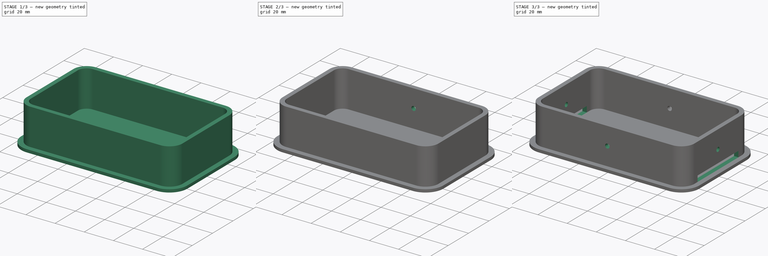
[diagram: build sequence overview — one tinted view per stage of 3, left to right]
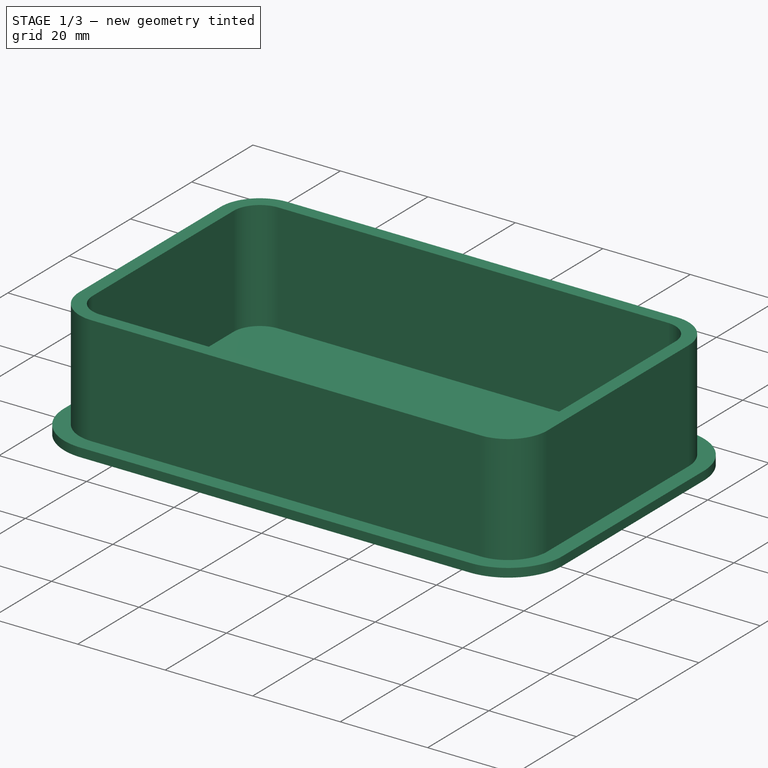
[diagram: stage 1 of 3 — iso view after this stage's code; geometry added in this stage tinted green]
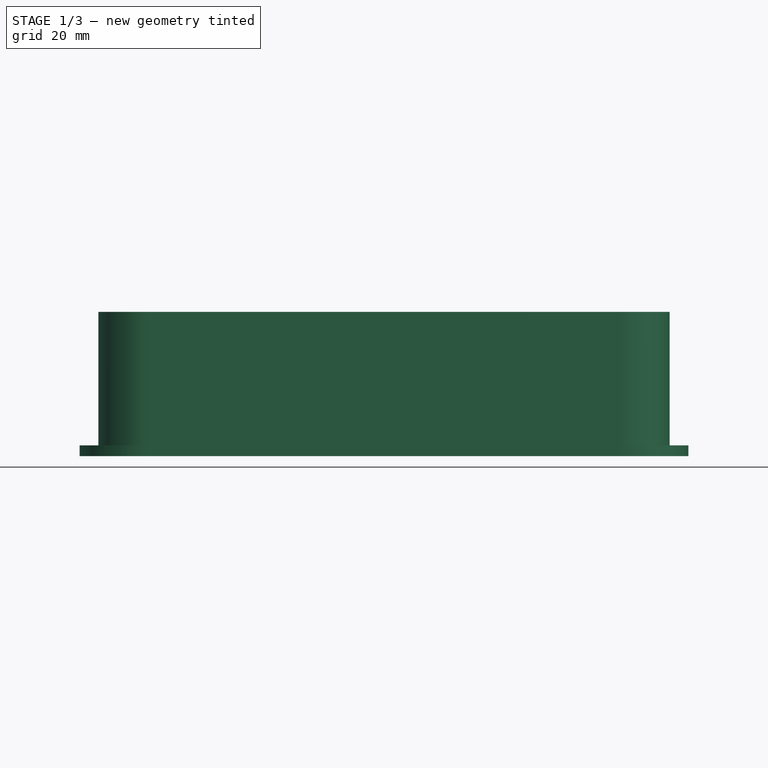
[diagram: stage 1 of 3 — front view after this stage's code; geometry added in this stage tinted green]
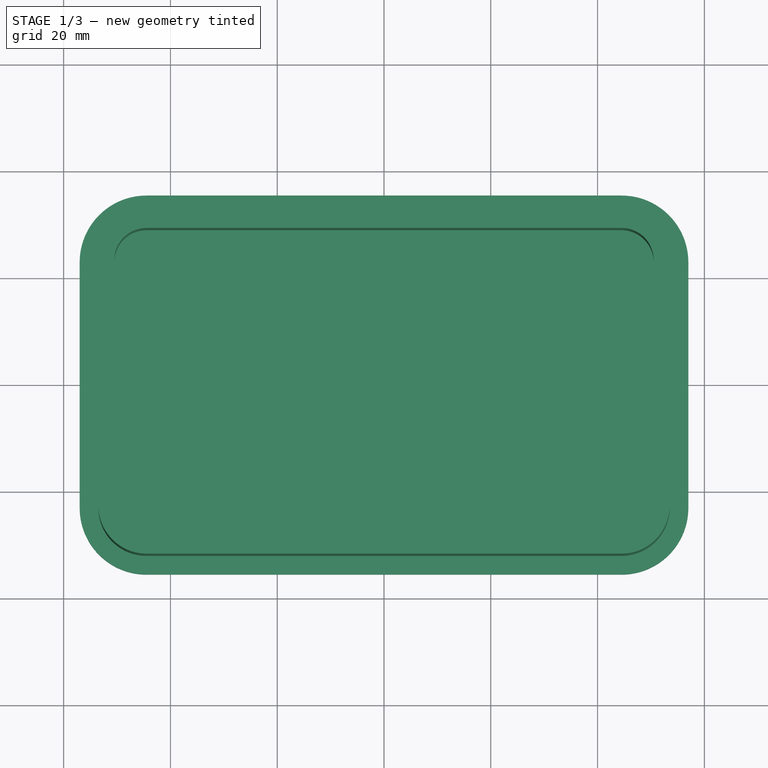
[diagram: stage 1 of 3 — top view after this stage's code; geometry added in this stage tinted green]
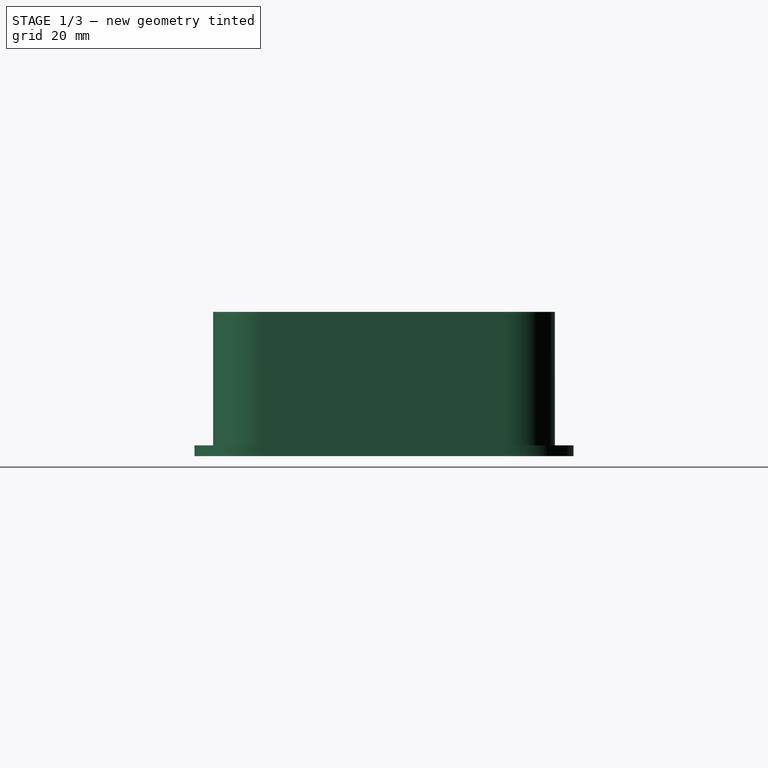
[diagram: stage 1 of 3 — right view after this stage's code; geometry added in this stage tinted green]
FCSTD DOCUMENT  (FreeCAD 0.20R29603 (Git))
Label: mount
License: All rights reserved
LicenseURL: http://en.wikipedia.org/wiki/All_rights_reserved
objects: Sketcher::SketchObject×4, PartDesign::Pad×2, PartDesign::Pocket×2, PartDesign::PolarPattern×1, PartDesign::Body×1
note: 14 computed .brp shape members not serialized (recipe doc carries the construction recipe); baked Part::Feature solids carry a one-line shape summary decoded from their .brp

FEATURE [Sketcher::SketchObject] Sketch001  label="front"
  FullyConstrained = true
  MapMode = 5
  Support = -> [XY_Plane]
  sketch-geometry (11):
    g0: GeomPoint X=0 Y=0 Z=0
    g1: LineSegment StartX=-57 StartY=23 StartZ=0 EndX=-57 EndY=-23 EndZ=0
    g2: LineSegment StartX=-44.5 StartY=-35.5 StartZ=0 EndX=44.5 EndY=-35.5 EndZ=0
    g3: LineSegment StartX=57 StartY=-23 StartZ=0 EndX=57 EndY=23 EndZ=0
    g4: LineSegment StartX=44.5 StartY=35.5 StartZ=0 EndX=-44.5 EndY=35.5 EndZ=0
    g5: GeomPoint X=0 Y=0 Z=0
    g6: GeomPoint X=0 Y=0 Z=0
    g7: ArcOfCircle CenterX=-44.5 CenterY=23 CenterZ=0 NormalX=0 NormalY=0 NormalZ=1 AngleXU=0 Radius=12.5 StartAngle=1.5708 EndAngle=3.14159
    g8: ArcOfCircle CenterX=44.5 CenterY=23 CenterZ=0 NormalX=0 NormalY=0 NormalZ=1 AngleXU=0 Radius=12.5 StartAngle=4.17e-14 EndAngle=1.5708
    g9: ArcOfCircle CenterX=44.5 CenterY=-23 CenterZ=0 NormalX=0 NormalY=0 NormalZ=1 AngleXU=0 Radius=12.5 StartAngle=4.71239 EndAngle=6.28319
    g10: ArcOfCircle CenterX=-44.5 CenterY=-23 CenterZ=0 NormalX=0 NormalY=0 NormalZ=1 AngleXU=0 Radius=12.5 StartAngle=3.14159 EndAngle=4.71239
  constraints (22):
    c: Coincident(g0,g-1)
    c: Horizontal(g2)
    c: Horizontal(g4)
    c: Vertical(g1)
    c: Vertical(g3)
    c: Coincident(g5,g0)
    c: Coincident(g6,g0)
    c: Tangent(g4,g7) = -1.5708
    c: Tangent(g1,g7) = -1.5708
    c: Tangent(g4,g8) = -1.5708
    c: Tangent(g3,g8) = -1.5708
    c: Tangent(g3,g9) = -1.5708
    c: Tangent(g2,g9) = -1.5708
    c: Tangent(g1,g10) = -1.5708
    c: Tangent(g2,g10) = -1.5708
    c: Equal(g10,g7)
    c: Equal(g7,g8)
    c: Equal(g7,g9)
    c: Diameter(g7) = 25
    c: Symmetric(g9,g7,g0)
    c: DistanceX(g1,g3) = 114
    c: DistanceY(g2,g4) = 71
FEATURE [PartDesign::Pad] Pad001
  AlongSketchNormal = false
  Direction = (0,0,1)
  Length = 2
  Length2 = 100
  Profile = -> Sketch001
  ReferenceAxis = -> Sketch001 [N_Axis]
  Type = 0
FEATURE [Sketcher::SketchObject] Sketch003  label="wall"
  ExternalGeometry = -> [Sketch001]
  FullyConstrained = true
  MapMode = 5
  Support = -> [XY_Plane]
  sketch-geometry (16):
    g0: LineSegment StartX=-44.5 StartY=32 StartZ=0 EndX=44.5 EndY=32 EndZ=0
    g1: LineSegment StartX=53.5 StartY=23 StartZ=0 EndX=53.5 EndY=-23 EndZ=0
    g2: LineSegment StartX=44.5 StartY=-32 StartZ=0 EndX=-44.5 EndY=-32 EndZ=0
    g3: LineSegment StartX=-53.5 StartY=-23 StartZ=0 EndX=-53.5 EndY=23 EndZ=0
    g4: ArcOfCircle CenterX=-44.5 CenterY=23 CenterZ=0 NormalX=0 NormalY=0 NormalZ=1 AngleXU=0 Radius=9 StartAngle=1.5708 EndAngle=3.14159
    g5: ArcOfCircle CenterX=44.5 CenterY=23 CenterZ=0 NormalX=0 NormalY=0 NormalZ=1 AngleXU=0 Radius=9 StartAngle=1e-16 EndAngle=1.5708
    g6: ArcOfCircle CenterX=44.5 CenterY=-23 CenterZ=0 NormalX=0 NormalY=0 NormalZ=1 AngleXU=0 Radius=9 StartAngle=4.71239 EndAngle=6.28319
    g7: ArcOfCircle CenterX=-44.5 CenterY=-23 CenterZ=0 NormalX=0 NormalY=0 NormalZ=1 AngleXU=0 Radius=9 StartAngle=3.14159 EndAngle=4.71239
    g8: LineSegment StartX=-50.5 StartY=23 StartZ=0 EndX=-50.5 EndY=-23 EndZ=0
    g9: LineSegment StartX=-44.5 StartY=-29 StartZ=0 EndX=44.5 EndY=-29 EndZ=0
    g10: LineSegment StartX=50.5 StartY=-23 StartZ=0 EndX=50.5 EndY=23 EndZ=0
    g11: LineSegment StartX=44.5 StartY=29 StartZ=0 EndX=-44.5 EndY=29 EndZ=0
    g12: ArcOfCircle CenterX=-44.5 CenterY=23 CenterZ=0 NormalX=0 NormalY=0 NormalZ=1 AngleXU=0 Radius=6 StartAngle=1.5708 EndAngle=3.14159
    g13: ArcOfCircle CenterX=-44.5 CenterY=-23 CenterZ=0 NormalX=0 NormalY=0 NormalZ=1 AngleXU=0 Radius=6 StartAngle=3.14159 EndAngle=4.71239
    g14: ArcOfCircle CenterX=44.5 CenterY=-23 CenterZ=0 NormalX=0 NormalY=0 NormalZ=1 AngleXU=0 Radius=6 StartAngle=4.71239 EndAngle=6.28319
    g15: ArcOfCircle CenterX=44.5 CenterY=23 CenterZ=0 NormalX=0 NormalY=0 NormalZ=1 AngleXU=0 Radius=6 StartAngle=0 EndAngle=1.5708
  constraints (40):
    c: Equal(g4,g7)
    c: Equal(g4,g5)
    c: Equal(g4,g6)
    c: Tangent(g4,g0) = 1.5708
    c: Horizontal(g9)
    c: Horizontal(g11)
    c: Vertical(g8)
    c: Vertical(g10)
    c: Tangent(g11,g12) = -1.5708
    c: Tangent(g8,g12) = -1.5708
    c: Tangent(g8,g13) = -1.5708
    c: Tangent(g9,g13) = -1.5708
    c: Tangent(g9,g14) = -1.5708
    c: Tangent(g10,g14) = -1.5708
    c: Tangent(g11,g15) = -1.5708
    c: Tangent(g10,g15) = -1.5708
    c: Vertical(g0,g11)
    c: Horizontal(g3,g8)
    c: Equal(g12,g13)
    c: Horizontal(g10,g1)
    c: Vertical(g9,g2)
    c: Horizontal(g8,g3)
    c: Vertical(g11,g0)
    c: DistanceY(g11,g0) = 3
    c: Vertical(g1)
    c: Tangent(g5,g1) = 1.5708
    c: Tangent(g5,g0) = 1.5708
    c: Tangent(g4,g3) = 1.5708
    c: Tangent(g7,g3) = 1.5708
    c: Tangent(g7,g2) = 1.5708
    c: Tangent(g6,g2) = 1.5708
    c: Tangent(g6,g1) = 1.5708
    c: Vertical(g-3,g0)
    c: Vertical(g3)
    c: Horizontal(g-5,g3)
    c: Horizontal(g0)
    c: Horizontal(g2)
    c: Vertical(g-3,g0)
    c: DistanceY(g0,g-3) = 3.5
    c: DistanceY(g-6,g2) = 3.5
FEATURE [PartDesign::Pad] Pad003
  AlongSketchNormal = false
  BaseFeature = -> Pad001
  Direction = (0,0,1)
  Length = 27
  Length2 = 100
  Profile = -> Sketch003
  ReferenceAxis = -> Sketch003 [N_Axis]
  Type = 0
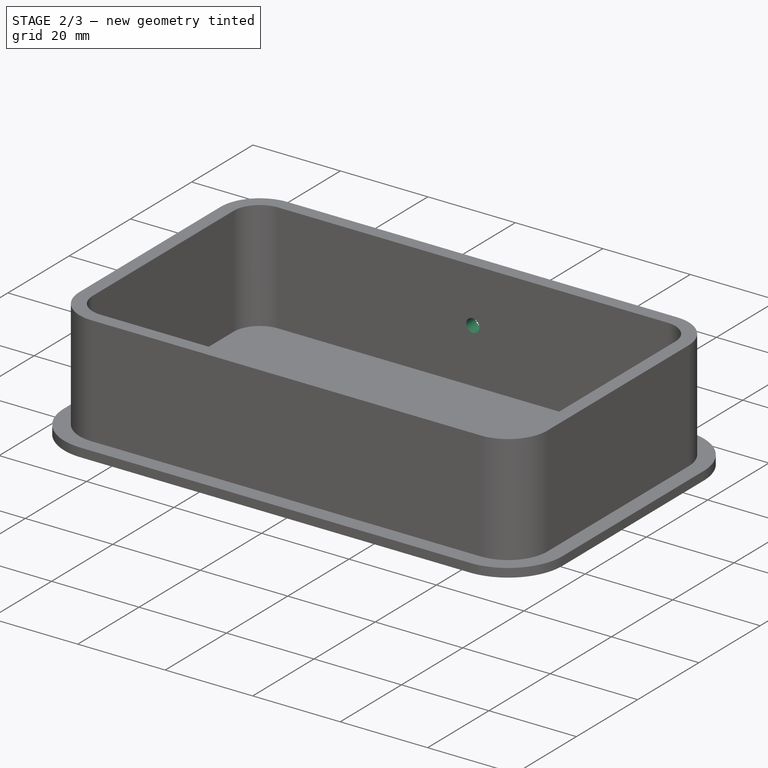
[diagram: stage 2 of 3 — iso view after this stage's code; geometry added in this stage tinted green]
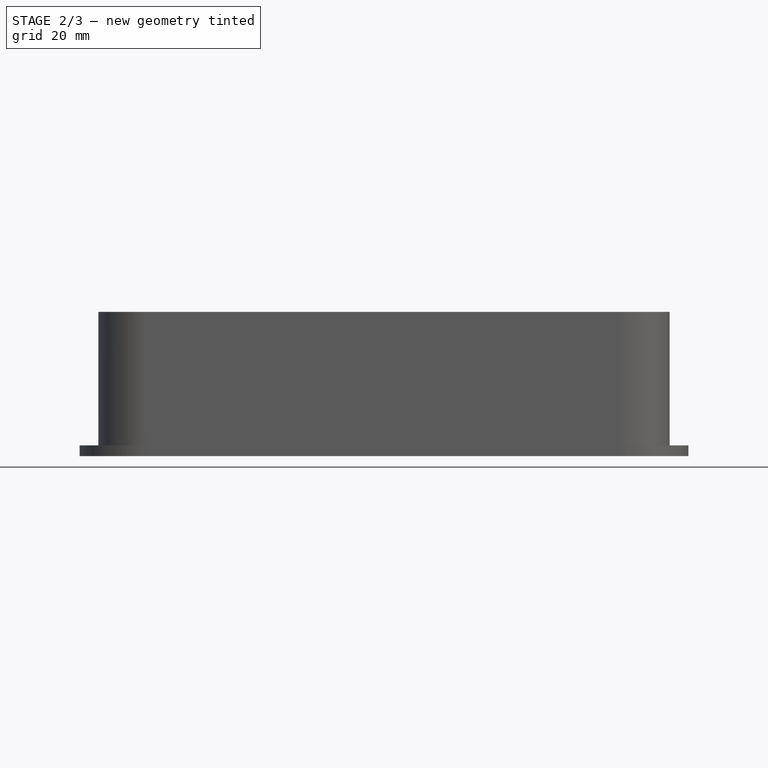
[diagram: stage 2 of 3 — front view after this stage's code; geometry added in this stage tinted green]
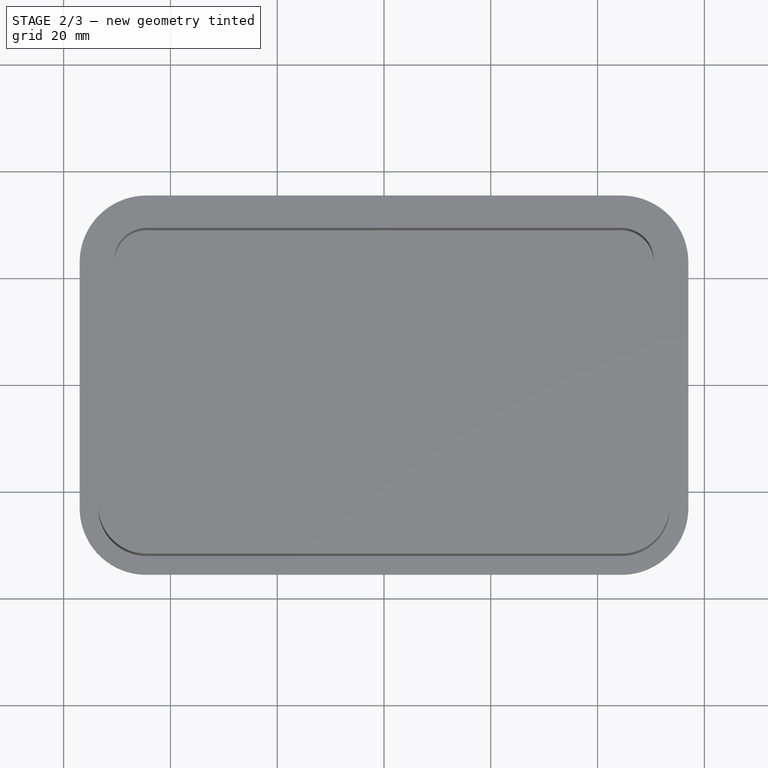
[diagram: stage 2 of 3 — top view after this stage's code; geometry added in this stage tinted green]
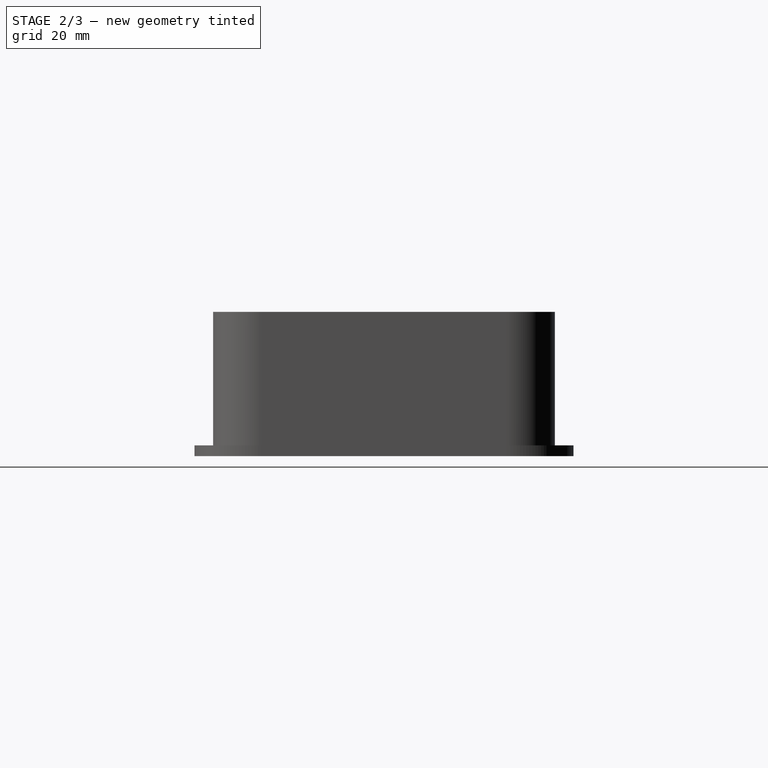
[diagram: stage 2 of 3 — right view after this stage's code; geometry added in this stage tinted green]
FEATURE [Sketcher::SketchObject] Sketch
  FullyConstrained = true
  MapMode = 5
  Placement = pos=(0,0,0) rot=(1,0,0;1.5708rad)
  Support = -> [XZ_Plane]
  sketch-geometry (1):
    g0: Circle CenterX=0 CenterY=14.5 CenterZ=0 NormalX=0 NormalY=0 NormalZ=1 AngleXU=0 Radius=1.5
  constraints (3):
    c: PointOnObject(g0,g-2)
    c: DistanceY(g-1,g0) = 14.5
    c: Diameter(g0) = 3
FEATURE [PartDesign::Pocket] Pocket
  BaseFeature = -> Pad003
  Direction = (0,1,2e-16)
  Length = 5
  Length2 = 5
  Profile = -> Sketch
  ReferenceAxis = -> Sketch [N_Axis]
  Type = 1
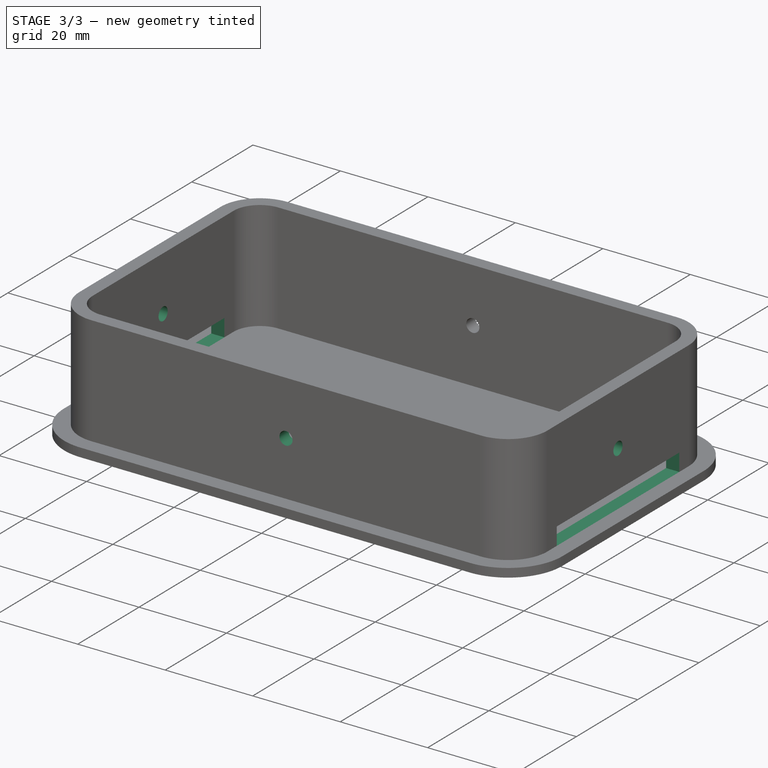
[diagram: stage 3 of 3 — iso view after this stage's code; geometry added in this stage tinted green]
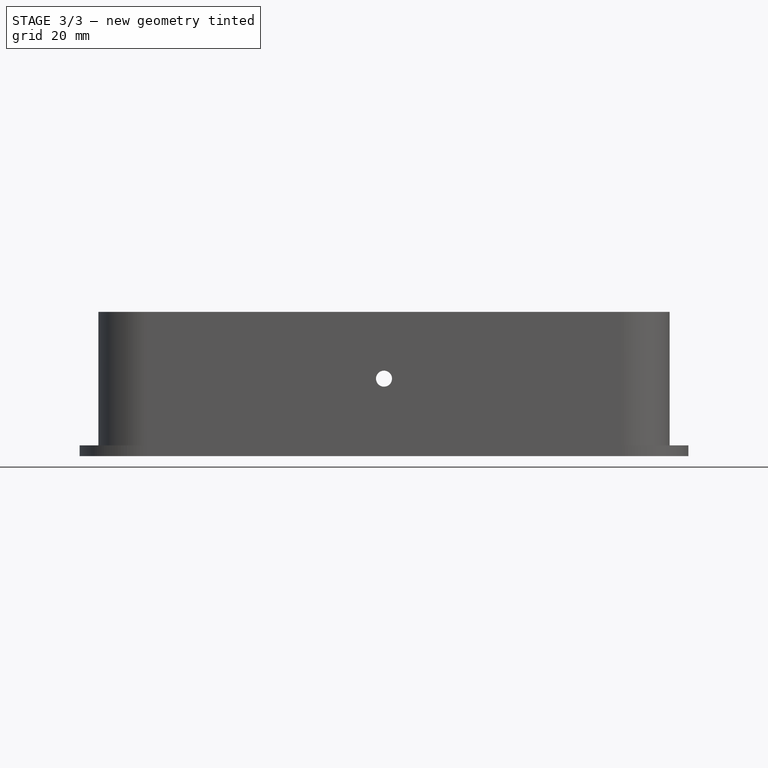
[diagram: stage 3 of 3 — front view after this stage's code; geometry added in this stage tinted green]
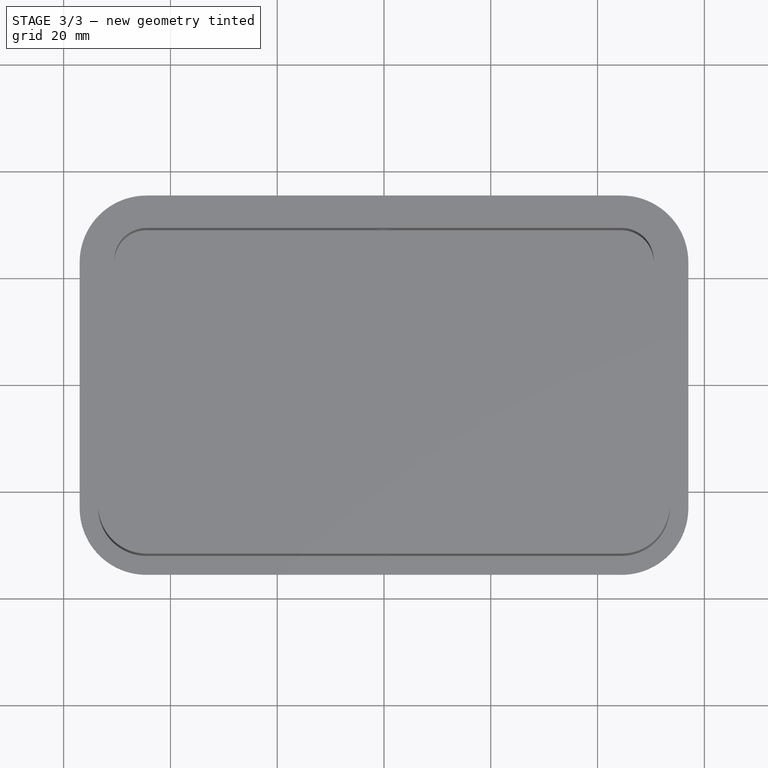
[diagram: stage 3 of 3 — top view after this stage's code; geometry added in this stage tinted green]
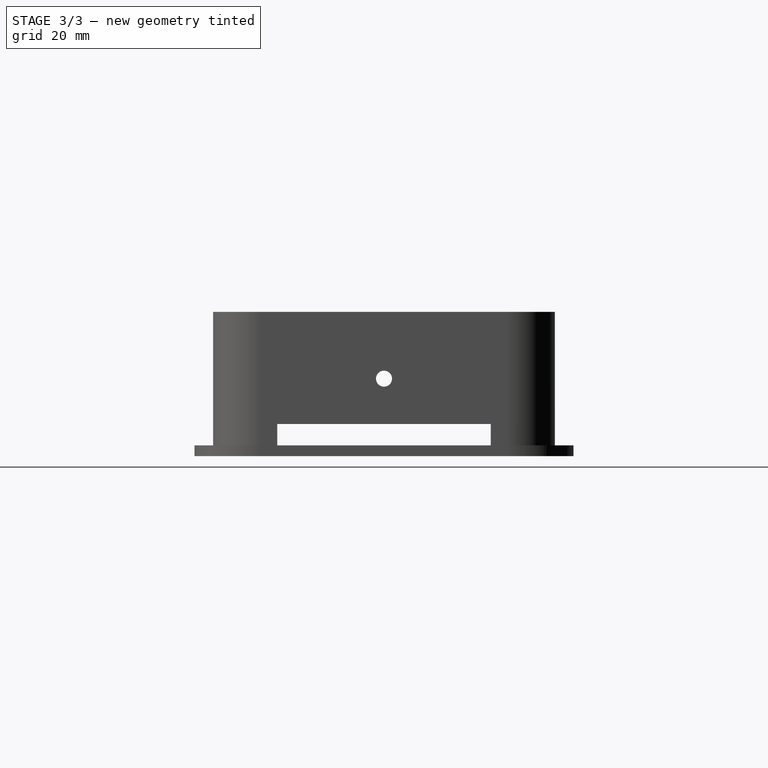
[diagram: stage 3 of 3 — right view after this stage's code; geometry added in this stage tinted green]
FEATURE [Sketcher::SketchObject] Sketch004
  FullyConstrained = true
  MapMode = 5
  Placement = pos=(0,0,0) rot=(0.57735,0.57735,0.57735;2.0944rad)
  Support = -> [YZ_Plane]
  sketch-geometry (5):
    g0: LineSegment StartX=-20 StartY=6 StartZ=0 EndX=-20 EndY=2 EndZ=0
    g1: LineSegment StartX=-20 StartY=2 StartZ=0 EndX=20 EndY=2 EndZ=0
    g2: LineSegment StartX=20 StartY=2 StartZ=0 EndX=20 EndY=6 EndZ=0
    g3: LineSegment StartX=20 StartY=6 StartZ=0 EndX=-20 EndY=6 EndZ=0
    g4: GeomPoint X=0 Y=4 Z=0
  constraints (13):
    c: Coincident(g0,g1)
    c: Coincident(g1,g2)
    c: Coincident(g2,g3)
    c: Coincident(g3,g0)
    c: Horizontal(g1)
    c: Horizontal(g3)
    c: Vertical(g0)
    c: Vertical(g2)
    c: Symmetric(g1,g0,g4)
    c: PointOnObject(g4,g-2)
    c: DistanceX(g3,g3) = 40
    c: DistanceY(g0,g0) = 4
    c: DistanceY(g-1,g1) = 2
FEATURE [PartDesign::Pocket] Pocket001
  BaseFeature = -> Pocket
  Direction = (-1,2e-16,-3e-16)
  Length = 5
  Length2 = 5
  Midplane = true
  Profile = -> Sketch004
  ReferenceAxis = -> Sketch004 [N_Axis]
  Type = 1
FEATURE [PartDesign::PolarPattern] PolarPattern
  Angle = 360
  Axis = -> Sketch [V_Axis]
  BaseFeature = -> Pocket001
  Occurrences = 4
  Originals = -> [Pocket]
FEATURE [PartDesign::Body] Body
  Group = -> [Sketch001,Pad001,Sketch003,Pad003,Sketch,Pocket,Sketch004,Pocket001,PolarPattern]
  Origin = -> Origin
  Tip = -> PolarPattern
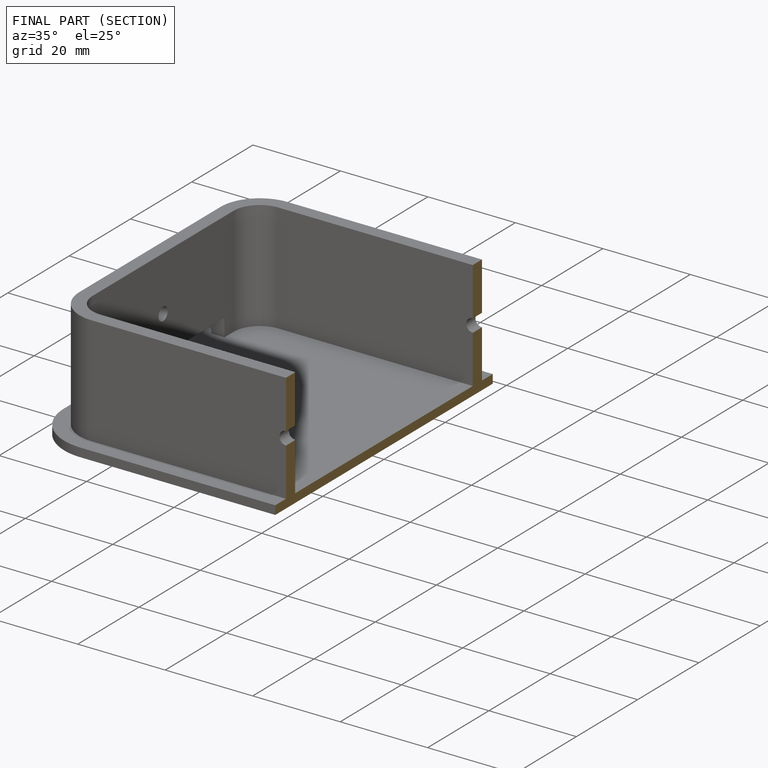
[diagram: finished part — half-section view (interior)]
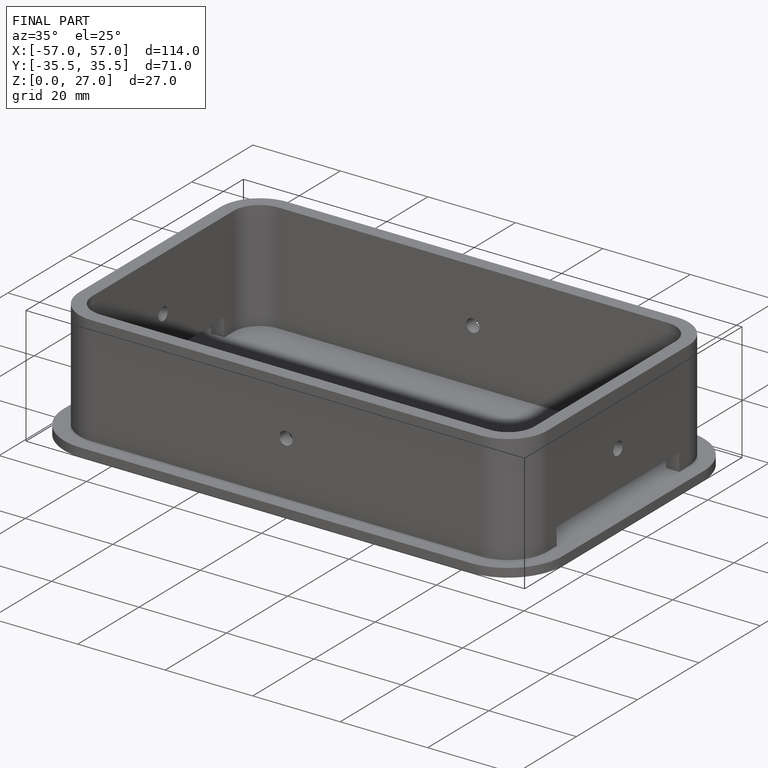
[diagram: finished part — iso view with bounding-box wireframe]
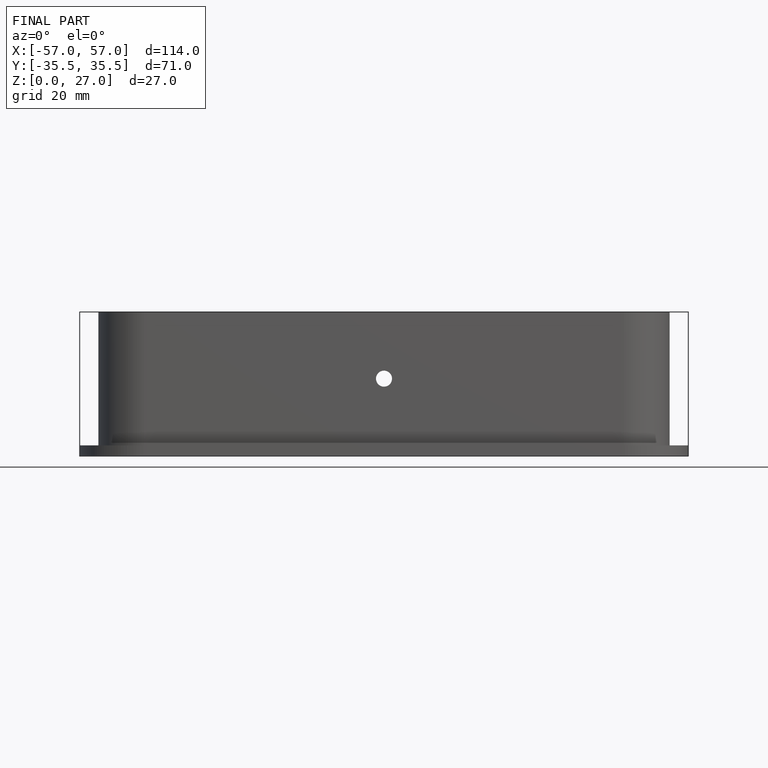
[diagram: finished part — front view with bounding-box wireframe]
